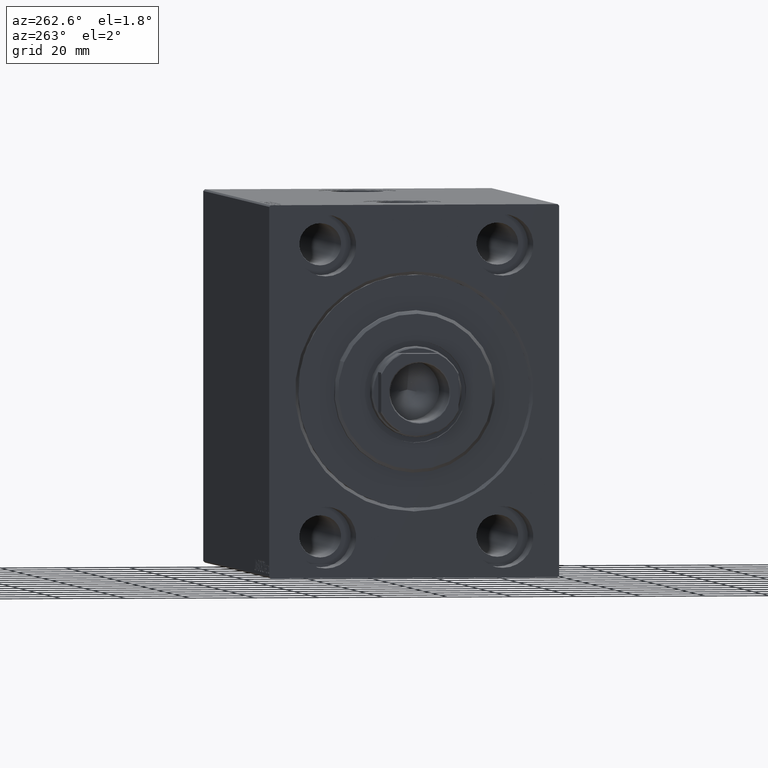
[diagram: clean part render]
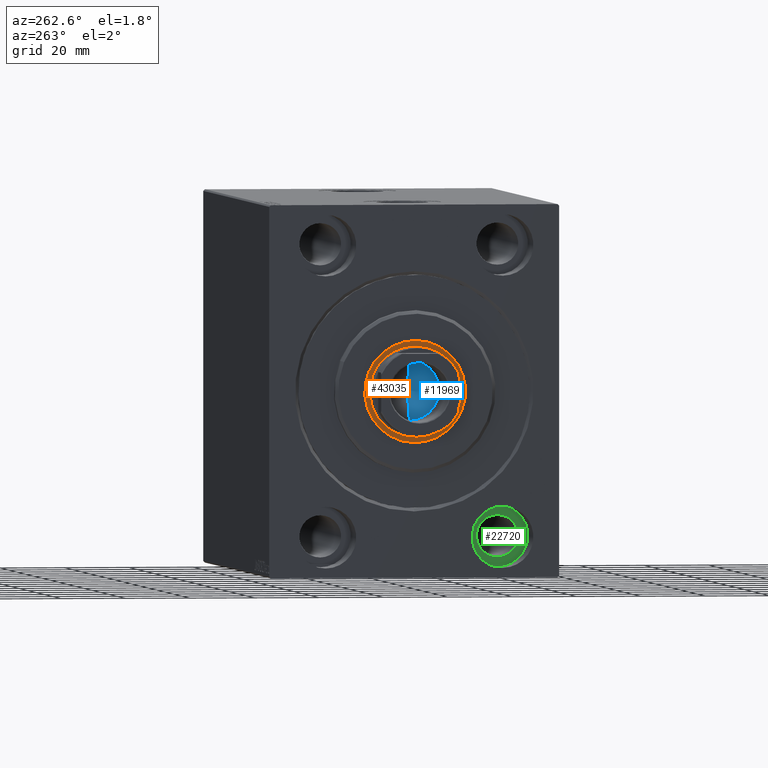
[diagram: same view with three faces highlighted in distinct colors, each labeled with its STEP entity id]
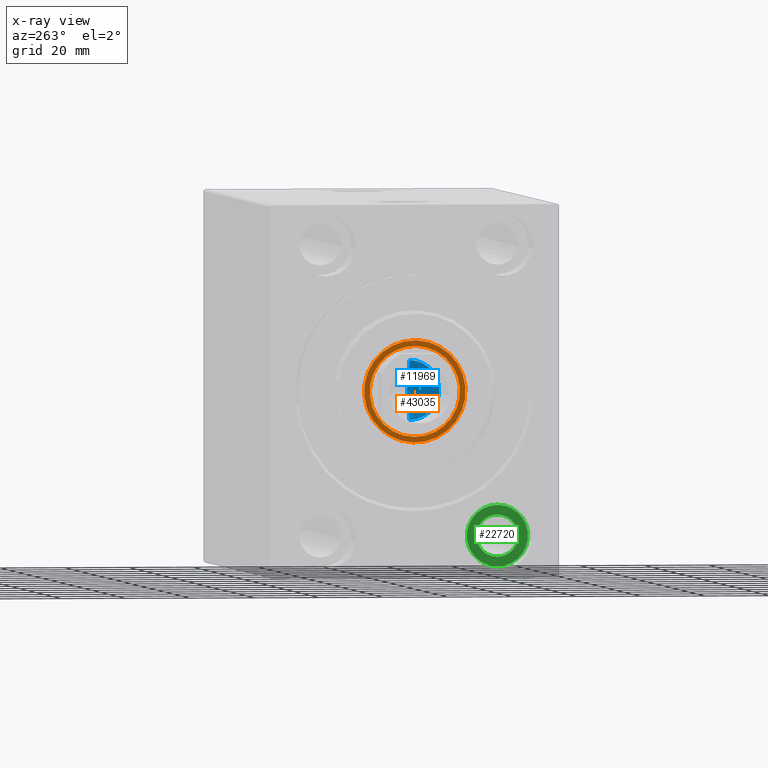
[diagram: x-ray of the same camera — body ghosted, the three highlighted faces saturated]
A machine part, auxiliary view with three faces highlighted in distinct colors.
The next image is the same camera in x-ray (body ghosted, the three faces saturated) — at least one of them is partly hidden behind the body in this view.
Their STEP definitions:

[orange] entity #43035 — the highlighted planar face has unit normal (-1, 0, 0).
#11 = DIRECTION ( 'NONE',  ( 0.000000000000000000, 0.000000000000000000, -1.000000000000000000 ) ) ;
#2330 = DIRECTION ( 'NONE',  ( 0.000000000000000000, 0.000000000000000000, -1.000000000000000000 ) ) ;
#3088 = EDGE_CURVE ( 'NONE', #35984, #38714, #11225, .T. ) ;
#3971 = CARTESIAN_POINT ( 'NONE',  ( 1.499999999999999556, 0.000000000000000000, 0.000000000000000000 ) ) ;
#6347 = AXIS2_PLACEMENT_3D ( 'NONE', #7803, #21396, #11 ) ;
#6641 = EDGE_CURVE ( 'NONE', #38714, #35984, #17708, .T. ) ;
#6683 = DIRECTION ( 'NONE',  ( 0.000000000000000000, 0.000000000000000000, -1.000000000000000000 ) ) ;
#7610 = EDGE_LOOP ( 'NONE', ( #29601, #27131 ) ) ;
#7803 = CARTESIAN_POINT ( 'NONE',  ( 1.499999999999999556, 0.000000000000000000, 0.000000000000000000 ) ) ;
#9224 = CARTESIAN_POINT ( 'NONE',  ( 1.500000000000000000, 0.000000000000000000, 0.000000000000000000 ) ) ;
#9774 = AXIS2_PLACEMENT_3D ( 'NONE', #3971, #28014, #41195 ) ;
#9789 = PLANE ( 'NONE',  #13515 ) ;
#10209 = VERTEX_POINT ( 'NONE', #29253 ) ;
#11225 = CIRCLE ( 'NONE', #9774, 14.00000000000000178 ) ;
#12451 = DIRECTION ( 'NONE',  ( 1.000000000000000000, 0.000000000000000000, 0.000000000000000000 ) ) ;
#13515 = AXIS2_PLACEMENT_3D ( 'NONE', #23391, #43045, #6683 ) ;
#15092 = ORIENTED_EDGE ( 'NONE', *, *, #23906, .T. ) ;
#16886 = CARTESIAN_POINT ( 'NONE',  ( 1.499999999999999556, 0.000000000000000000, -14.00000000000000178 ) ) ;
#17043 = AXIS2_PLACEMENT_3D ( 'NONE', #9224, #30144, #2330 ) ;
#17708 = CIRCLE ( 'NONE', #6347, 14.00000000000000178 ) ;
#18071 = AXIS2_PLACEMENT_3D ( 'NONE', #32733, #12451, #22707 ) ;
#20161 = ORIENTED_EDGE ( 'NONE', *, *, #41547, .T. ) ;
#20723 = EDGE_LOOP ( 'NONE', ( #15092, #20161 ) ) ;
#21057 = VERTEX_POINT ( 'NONE', #40429 ) ;
#21396 = DIRECTION ( 'NONE',  ( 1.000000000000000000, 0.000000000000000000, 0.000000000000000000 ) ) ;
#22707 = DIRECTION ( 'NONE',  ( 0.000000000000000000, 0.000000000000000000, -1.000000000000000000 ) ) ;
#23391 = CARTESIAN_POINT ( 'NONE',  ( 1.500000000000000000, 0.000000000000000000, 0.000000000000000000 ) ) ;
#23906 = EDGE_CURVE ( 'NONE', #21057, #10209, #28710, .T. ) ;
#26725 = FACE_OUTER_BOUND ( 'NONE', #20723, .T. ) ;
#27131 = ORIENTED_EDGE ( 'NONE', *, *, #3088, .F. ) ;
#28014 = DIRECTION ( 'NONE',  ( 1.000000000000000000, 0.000000000000000000, 0.000000000000000000 ) ) ;
#28710 = CIRCLE ( 'NONE', #18071, 15.75000000000000000 ) ;
#29253 = CARTESIAN_POINT ( 'NONE',  ( 1.500000000000000000, 1.928818708657080950E-15, -15.75000000000000000 ) ) ;
#29601 = ORIENTED_EDGE ( 'NONE', *, *, #6641, .F. ) ;
#29862 = FACE_BOUND ( 'NONE', #7610, .T. ) ;
#30144 = DIRECTION ( 'NONE',  ( 1.000000000000000000, 0.000000000000000000, 0.000000000000000000 ) ) ;
#32733 = CARTESIAN_POINT ( 'NONE',  ( 1.500000000000000000, 0.000000000000000000, 0.000000000000000000 ) ) ;
#35545 = CIRCLE ( 'NONE', #17043, 15.75000000000000000 ) ;
#35984 = VERTEX_POINT ( 'NONE', #38966 ) ;
#38714 = VERTEX_POINT ( 'NONE', #16886 ) ;
#38966 = CARTESIAN_POINT ( 'NONE',  ( 1.499999999999999556, 1.714505518806294441E-15, 14.00000000000000178 ) ) ;
#40429 = CARTESIAN_POINT ( 'NONE',  ( 1.500000000000000000, 0.000000000000000000, 15.75000000000000000 ) ) ;
#41195 = DIRECTION ( 'NONE',  ( 0.000000000000000000, 0.000000000000000000, -1.000000000000000000 ) ) ;
#41547 = EDGE_CURVE ( 'NONE', #10209, #21057, #35545, .T. ) ;
#43035 = ADVANCED_FACE ( 'NONE', ( #29862, #26725 ), #9789, .T. ) ;
#43045 = DIRECTION ( 'NONE',  ( 1.000000000000000000, 0.000000000000000000, 0.000000000000000000 ) ) ;

[blue] entity #11969 — the highlighted conical surface has half-angle 59 deg.
#2395 = CARTESIAN_POINT ( 'NONE',  ( 9.249999999999994671, 0.000000000000000000, 129.0000000000000284 ) ) ;
#2700 = DIRECTION ( 'NONE',  ( 1.000000000000000000, 0.000000000000000000, 0.000000000000000000 ) ) ;
#3833 = EDGE_CURVE ( 'NONE', #39384, #29995, #23153, .T. ) ;
#4454 = CARTESIAN_POINT ( 'NONE',  ( 0.000000000000000000, 0.000000000000000000, 129.0000000000000284 ) ) ;
#4957 = EDGE_LOOP ( 'NONE', ( #9805, #40817, #20495 ) ) ;
#5149 = LINE ( 'NONE', #18288, #9827 ) ;
#7625 = CARTESIAN_POINT ( 'NONE',  ( -9.249999999999994671, 1.132798289211300909E-15, 129.0000000000000284 ) ) ;
#7818 = DIRECTION ( 'NONE',  ( -0.8571673007021113344, 1.049727191138617463E-16, 0.5150380749100558209 ) ) ;
#9805 = ORIENTED_EDGE ( 'NONE', *, *, #3833, .F. ) ;
#9827 = VECTOR ( 'NONE', #7818, 1000.000000000000000 ) ;
#11969 = ADVANCED_FACE ( 'NONE', ( #38327 ), #13542, .F. ) ;
#12740 = DIRECTION ( 'NONE',  ( -0.000000000000000000, -0.000000000000000000, 1.000000000000000000 ) ) ;
#13026 = CARTESIAN_POINT ( 'NONE',  ( -6.793016015247754405E-15, 0.000000000000000000, 123.4420392739950785 ) ) ;
#13351 = AXIS2_PLACEMENT_3D ( 'NONE', #39718, #12740, #2700 ) ;
#13542 = CONICAL_SURFACE ( 'NONE', #19251, 9.249999999999994671, 1.029744258676652535 ) ;
#18044 = DIRECTION ( 'NONE',  ( 1.000000000000000000, 0.000000000000000000, 0.000000000000000000 ) ) ;
#18288 = CARTESIAN_POINT ( 'NONE',  ( -9.249999999999994671, 1.132798289211300909E-15, 129.0000000000000284 ) ) ;
#19251 = AXIS2_PLACEMENT_3D ( 'NONE', #4454, #28723, #18044 ) ;
#19593 = CARTESIAN_POINT ( 'NONE',  ( 9.249999999999994671, 0.000000000000000000, 129.0000000000000284 ) ) ;
#20241 = DIRECTION ( 'NONE',  ( 0.8571673007021113344, 0.000000000000000000, 0.5150380749100558209 ) ) ;
#20495 = ORIENTED_EDGE ( 'NONE', *, *, #33083, .T. ) ;
#23153 = LINE ( 'NONE', #19593, #42547 ) ;
#28723 = DIRECTION ( 'NONE',  ( -0.000000000000000000, -0.000000000000000000, 1.000000000000000000 ) ) ;
#29995 = VERTEX_POINT ( 'NONE', #2395 ) ;
#33083 = EDGE_CURVE ( 'NONE', #37491, #29995, #42561, .T. ) ;
#34872 = EDGE_CURVE ( 'NONE', #39384, #37491, #5149, .T. ) ;
#37491 = VERTEX_POINT ( 'NONE', #7625 ) ;
#38327 = FACE_OUTER_BOUND ( 'NONE', #4957, .T. ) ;
#39384 = VERTEX_POINT ( 'NONE', #13026 ) ;
#39718 = CARTESIAN_POINT ( 'NONE',  ( 0.000000000000000000, 0.000000000000000000, 129.0000000000000284 ) ) ;
#40817 = ORIENTED_EDGE ( 'NONE', *, *, #34872, .T. ) ;
#42547 = VECTOR ( 'NONE', #20241, 1000.000000000000000 ) ;
#42561 = CIRCLE ( 'NONE', #13351, 9.249999999999994671 ) ;

[green] entity #22720 — the highlighted planar face has unit normal (-1, 0, 0).
#943 = ORIENTED_EDGE ( 'NONE', *, *, #1794, .F. ) ;
#1537 = DIRECTION ( 'NONE',  ( 0.000000000000000000, 0.000000000000000000, 1.000000000000000000 ) ) ;
#1794 = EDGE_CURVE ( 'NONE', #19600, #20604, #18418, .T. ) ;
#3109 = DIRECTION ( 'NONE',  ( -1.000000000000000000, 0.000000000000000000, 0.000000000000000000 ) ) ;
#4849 = AXIS2_PLACEMENT_3D ( 'NONE', #5780, #5565, #42791 ) ;
#4939 = CARTESIAN_POINT ( 'NONE',  ( 13.00000000000000000, -27.50000000000000000, -44.99999999999998579 ) ) ;
#5565 = DIRECTION ( 'NONE',  ( -1.000000000000000000, 0.000000000000000000, 0.000000000000000000 ) ) ;
#5780 = CARTESIAN_POINT ( 'NONE',  ( 13.00000000000001066, -27.50000000000000000, -44.99999999999998579 ) ) ;
#6605 = DIRECTION ( 'NONE',  ( 0.000000000000000000, 0.000000000000000000, 1.000000000000000000 ) ) ;
#7665 = CIRCLE ( 'NONE', #4849, 6.499999999999999112 ) ;
#9417 = CIRCLE ( 'NONE', #42171, 9.500000000000001776 ) ;
#10309 = EDGE_LOOP ( 'NONE', ( #16015, #34695 ) ) ;
#10348 = CARTESIAN_POINT ( 'NONE',  ( 13.00000000000001066, -27.50000000000000000, -44.99999999999998579 ) ) ;
#11325 = CARTESIAN_POINT ( 'NONE',  ( 13.00000000000000000, -27.50000000000000000, -54.49999999999998579 ) ) ;
#12556 = CARTESIAN_POINT ( 'NONE',  ( 13.00000000000000000, -27.50000000000000000, -35.49999999999998579 ) ) ;
#12692 = CARTESIAN_POINT ( 'NONE',  ( 13.00000000000001066, -27.50000000000000000, -38.49999999999998579 ) ) ;
#12817 = DIRECTION ( 'NONE',  ( -1.000000000000000000, 0.000000000000000000, 0.000000000000000000 ) ) ;
#15568 = CARTESIAN_POINT ( 'NONE',  ( 13.00000000000000000, 0.000000000000000000, 0.000000000000000000 ) ) ;
#16015 = ORIENTED_EDGE ( 'NONE', *, *, #16144, .T. ) ;
#16063 = VERTEX_POINT ( 'NONE', #11325 ) ;
#16144 = EDGE_CURVE ( 'NONE', #19160, #16063, #9417, .T. ) ;
#16338 = EDGE_LOOP ( 'NONE', ( #31803, #943 ) ) ;
#16371 = FACE_BOUND ( 'NONE', #16338, .T. ) ;
#18418 = CIRCLE ( 'NONE', #43343, 6.499999999999999112 ) ;
#19160 = VERTEX_POINT ( 'NONE', #12556 ) ;
#19600 = VERTEX_POINT ( 'NONE', #22980 ) ;
#20403 = CARTESIAN_POINT ( 'NONE',  ( 13.00000000000000000, -27.50000000000000000, -44.99999999999998579 ) ) ;
#20604 = VERTEX_POINT ( 'NONE', #12692 ) ;
#20859 = AXIS2_PLACEMENT_3D ( 'NONE', #4939, #3109, #36988 ) ;
#22030 = PLANE ( 'NONE',  #25860 ) ;
#22431 = EDGE_CURVE ( 'NONE', #16063, #19160, #40777, .T. ) ;
#22720 = ADVANCED_FACE ( 'NONE', ( #16371, #43572 ), #22030, .T. ) ;
#22980 = CARTESIAN_POINT ( 'NONE',  ( 13.00000000000001066, -27.50000000000000000, -51.49999999999998579 ) ) ;
#25860 = AXIS2_PLACEMENT_3D ( 'NONE', #15568, #29959, #1537 ) ;
#29959 = DIRECTION ( 'NONE',  ( -1.000000000000000000, 0.000000000000000000, 0.000000000000000000 ) ) ;
#31094 = DIRECTION ( 'NONE',  ( -1.000000000000000000, 0.000000000000000000, 0.000000000000000000 ) ) ;
#31803 = ORIENTED_EDGE ( 'NONE', *, *, #32524, .F. ) ;
#32524 = EDGE_CURVE ( 'NONE', #20604, #19600, #7665, .T. ) ;
#34695 = ORIENTED_EDGE ( 'NONE', *, *, #22431, .T. ) ;
#36988 = DIRECTION ( 'NONE',  ( 0.000000000000000000, 0.000000000000000000, 1.000000000000000000 ) ) ;
#37989 = DIRECTION ( 'NONE',  ( 0.000000000000000000, 0.000000000000000000, 1.000000000000000000 ) ) ;
#40777 = CIRCLE ( 'NONE', #20859, 9.500000000000001776 ) ;
#42171 = AXIS2_PLACEMENT_3D ( 'NONE', #20403, #31094, #6605 ) ;
#42791 = DIRECTION ( 'NONE',  ( 0.000000000000000000, 0.000000000000000000, 1.000000000000000000 ) ) ;
#43343 = AXIS2_PLACEMENT_3D ( 'NONE', #10348, #12817, #37989 ) ;
#43572 = FACE_OUTER_BOUND ( 'NONE', #10309, .T. ) ;